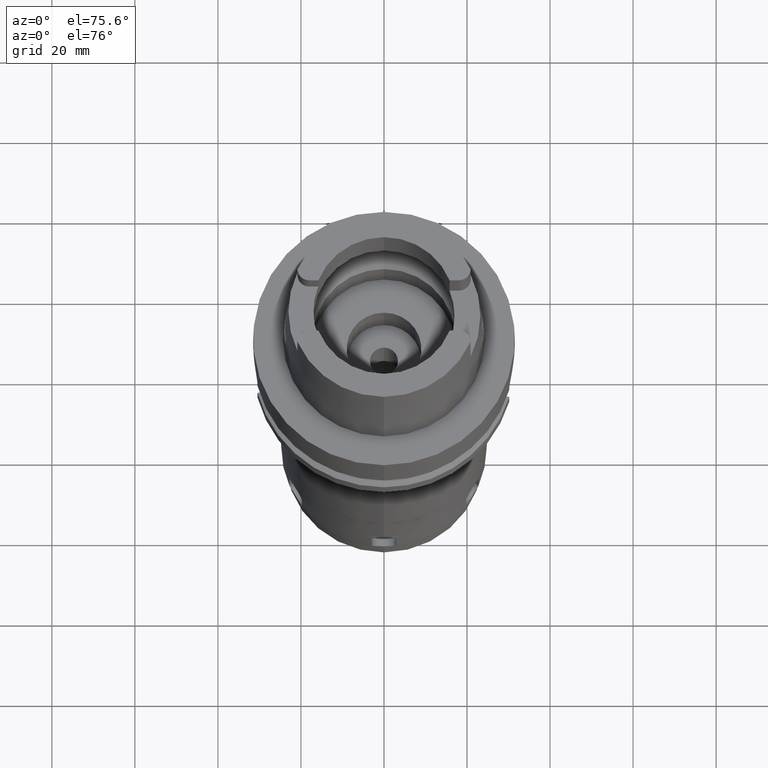
[diagram: clean part render]
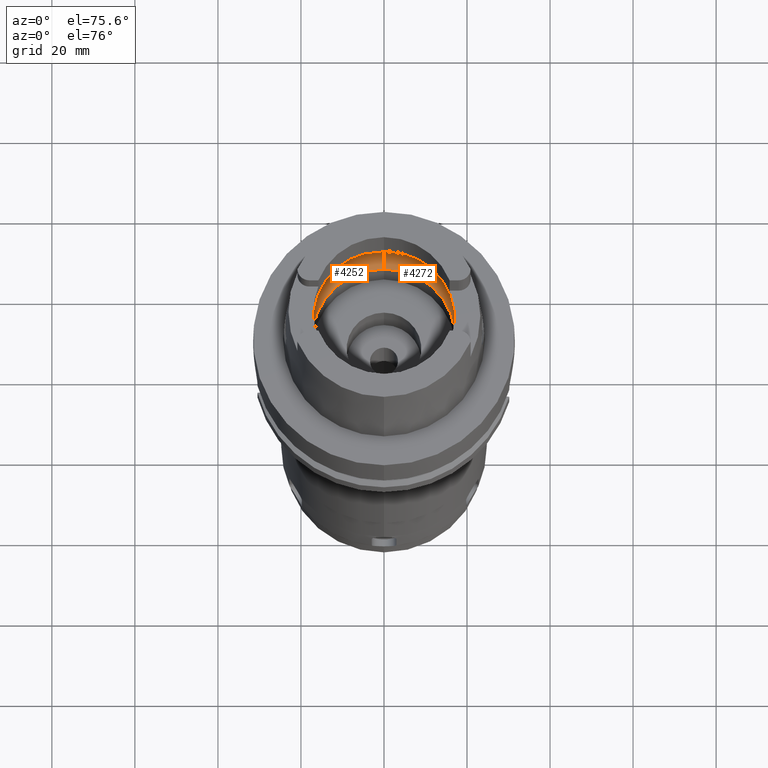
[diagram: same view with one multi-face feature highlighted, each face labeled with its STEP entity id]
A machine part, auxiliary view. The highlighted faces form ONE feature: a constant-radius fillet chain: 2 tangent blend faces with common blend radius 8 mm. The faces share edges in the B-rep.
Their STEP definitions:
[1] entity #4272 (Torus):
#575=CARTESIAN_POINT('',(0.E0,-1.2E1,6.186348233825E0));
#576=DIRECTION('',(-1.E0,0.E0,0.E0));
#577=DIRECTION('',(0.E0,-6.5625E-1,-7.545435292281E-1));
#578=AXIS2_PLACEMENT_3D('',#575,#576,#577);
#591=CARTESIAN_POINT('',(1.994501428476E1,0.E0,5.25E0));
#592=CARTESIAN_POINT('',(1.994501428476E1,-3.022957154465E-1,5.25E0));
#593=CARTESIAN_POINT('',(1.994018609693E1,-9.060474356403E-1,5.323296439589E0));
#594=CARTESIAN_POINT('',(1.991331550025E1,-1.759139202252E0,5.647061182125E0));
#595=CARTESIAN_POINT('',(1.987369610543E1,-2.255438229266E0,5.989294685574E0));
#596=CARTESIAN_POINT('',(1.984575864666E1,-2.479085262491E0,6.186348233825E0));
#601=CARTESIAN_POINT('',(0.E0,0.E0,6.186348233825E0));
#602=DIRECTION('',(0.E0,0.E0,-1.E0));
#603=DIRECTION('',(9.922879323328E-1,-1.239542631245E-1,0.E0));
#604=AXIS2_PLACEMENT_3D('',#601,#602,#603);
#609=CARTESIAN_POINT('',(0.E0,0.E0,1.500000000001E-1));
#610=DIRECTION('',(0.E0,0.E0,1.E0));
#611=DIRECTION('',(0.E0,-1.E0,0.E0));
#612=AXIS2_PLACEMENT_3D('',#609,#610,#611);
#617=CARTESIAN_POINT('',(0.E0,1.2E1,6.186348233825E0));
#618=DIRECTION('',(1.E0,0.E0,0.E0));
#619=DIRECTION('',(0.E0,6.5625E-1,-7.545435292281E-1));
#620=AXIS2_PLACEMENT_3D('',#617,#618,#619);
#625=CARTESIAN_POINT('',(0.E0,0.E0,6.186348233825E0));
#626=DIRECTION('',(0.E0,0.E0,-1.E0));
#627=DIRECTION('',(0.E0,1.E0,0.E0));
#628=AXIS2_PLACEMENT_3D('',#625,#626,#627);
#633=CARTESIAN_POINT('',(1.984575864666E1,2.479085262491E0,6.186348233825E0));
#634=CARTESIAN_POINT('',(1.987369683552E1,2.255432384732E0,5.989289536004E0));
#635=CARTESIAN_POINT('',(1.991331633330E1,1.759123026949E0,5.647052493715E0));
#636=CARTESIAN_POINT('',(1.994018619685E1,9.060366292765E-1,5.323294636829E0));
#637=CARTESIAN_POINT('',(1.994501428476E1,3.022911403854E-1,5.25E0));
#638=CARTESIAN_POINT('',(1.994501428476E1,0.E0,5.25E0));
#650=CARTESIAN_POINT('',(1.984575864666E1,-2.479085262491E0,6.186348233825E0));
#677=CARTESIAN_POINT('',(1.984575864666E1,2.479085262491E0,6.186348233825E0));
#3503=CARTESIAN_POINT('',(0.E0,-2.E1,6.186348233825E0));
#3504=VERTEX_POINT('',#3503);
#3505=CARTESIAN_POINT('',(0.E0,2.E1,6.186348233825E0));
#3506=VERTEX_POINT('',#3505);
#3511=VERTEX_POINT('',#650);
#3513=VERTEX_POINT('',#591);
#3514=VERTEX_POINT('',#677);
#3515=CARTESIAN_POINT('',(0.E0,1.725E1,1.500000000001E-1));
#3516=VERTEX_POINT('',#3515);
#3517=CARTESIAN_POINT('',(0.E0,-1.725E1,1.500000000001E-1));
#3518=VERTEX_POINT('',#3517);
#4253=CARTESIAN_POINT('',(0.E0,0.E0,6.186348233825E0));
#4254=DIRECTION('',(0.E0,0.E0,1.E0));
#4255=DIRECTION('',(0.E0,1.E0,0.E0));
#4256=AXIS2_PLACEMENT_3D('',#4253,#4254,#4255);
#4257=TOROIDAL_SURFACE('',#4256,1.2E1,8.E0);
#4259=ORIENTED_EDGE('',*,*,#4258,.T.);
#4261=ORIENTED_EDGE('',*,*,#4260,.T.);
#4262=ORIENTED_EDGE('',*,*,#4247,.F.);
#4264=ORIENTED_EDGE('',*,*,#4263,.T.);
#4265=ORIENTED_EDGE('',*,*,#4243,.T.);
#4267=ORIENTED_EDGE('',*,*,#4266,.T.);
#4269=ORIENTED_EDGE('',*,*,#4268,.T.);
#4270=EDGE_LOOP('',(#4259,#4261,#4262,#4264,#4265,#4267,#4269));
#4271=FACE_OUTER_BOUND('',#4270,.F.);
#579=CIRCLE('',#578,8.E0);
#597=B_SPLINE_CURVE_WITH_KNOTS('',3,(#591,#592,#593,#594,#595,#596),
.UNSPECIFIED.,.F.,.F.,(4,1,1,4),(0.E0,3.333333333333E-1,6.666666666667E-1,1.E0),
.UNSPECIFIED.);
#605=CIRCLE('',#604,2.E1);
#613=CIRCLE('',#612,1.725E1);
#621=CIRCLE('',#620,8.E0);
#629=CIRCLE('',#628,2.E1);
#639=B_SPLINE_CURVE_WITH_KNOTS('',3,(#633,#634,#635,#636,#637,#638),
.UNSPECIFIED.,.F.,.F.,(4,1,1,4),(0.E0,3.333333333333E-1,6.666666666667E-1,1.E0),
.UNSPECIFIED.);
#4243=EDGE_CURVE('',#3516,#3506,#621,.T.);
#4247=EDGE_CURVE('',#3518,#3504,#579,.T.);
#4258=EDGE_CURVE('',#3513,#3511,#597,.T.);
#4260=EDGE_CURVE('',#3511,#3504,#605,.T.);
#4263=EDGE_CURVE('',#3518,#3516,#613,.T.);
#4266=EDGE_CURVE('',#3506,#3514,#629,.T.);
#4268=EDGE_CURVE('',#3514,#3513,#639,.T.);
#4272=ADVANCED_FACE('',(#4271),#4257,.F.);
[2] entity #4252 (Torus):
#497=CARTESIAN_POINT('',(-1.984575864666E1,-2.479085262491E0,6.186348233825E0));
#539=CARTESIAN_POINT('',(-1.984575864666E1,-2.479085262491E0,6.186348233825E0));
#540=CARTESIAN_POINT('',(-1.987369637762E1,-2.255436050342E0,5.989292765742E0));
#541=CARTESIAN_POINT('',(-1.991331581871E1,-1.759133185383E0,5.647057889337E0));
#542=CARTESIAN_POINT('',(-1.994018615095E1,-9.060425565455E-1,
5.323295534197E0));
#543=CARTESIAN_POINT('',(-1.994501428476E1,-3.022936309386E-1,5.25E0));
#544=CARTESIAN_POINT('',(-1.994501428476E1,0.E0,5.25E0));
#549=CARTESIAN_POINT('',(-1.994501428476E1,0.E0,5.25E0));
#550=CARTESIAN_POINT('',(-1.994501428476E1,3.022931930043E-1,5.25E0));
#551=CARTESIAN_POINT('',(-1.994018614423E1,9.060414364937E-1,5.323295523152E0));
#552=CARTESIAN_POINT('',(-1.991331601589E1,1.759129035713E0,5.647055777419E0));
#553=CARTESIAN_POINT('',(-1.987369656375E1,2.255434560347E0,5.989291452920E0));
#554=CARTESIAN_POINT('',(-1.984575864666E1,2.479085262491E0,6.186348233825E0));
#559=CARTESIAN_POINT('',(0.E0,0.E0,6.186348233825E0));
#560=DIRECTION('',(0.E0,0.E0,-1.E0));
#561=DIRECTION('',(-9.922879323328E-1,1.239542631245E-1,0.E0));
#562=AXIS2_PLACEMENT_3D('',#559,#560,#561);
#567=CARTESIAN_POINT('',(0.E0,0.E0,1.500000000001E-1));
#568=DIRECTION('',(0.E0,0.E0,1.E0));
#569=DIRECTION('',(0.E0,1.E0,0.E0));
#570=AXIS2_PLACEMENT_3D('',#567,#568,#569);
#575=CARTESIAN_POINT('',(0.E0,-1.2E1,6.186348233825E0));
#576=DIRECTION('',(-1.E0,0.E0,0.E0));
#577=DIRECTION('',(0.E0,-6.5625E-1,-7.545435292281E-1));
#578=AXIS2_PLACEMENT_3D('',#575,#576,#577);
#583=CARTESIAN_POINT('',(0.E0,0.E0,6.186348233825E0));
#584=DIRECTION('',(0.E0,0.E0,-1.E0));
#585=DIRECTION('',(0.E0,-1.E0,0.E0));
#586=AXIS2_PLACEMENT_3D('',#583,#584,#585);
#617=CARTESIAN_POINT('',(0.E0,1.2E1,6.186348233825E0));
#618=DIRECTION('',(1.E0,0.E0,0.E0));
#619=DIRECTION('',(0.E0,6.5625E-1,-7.545435292281E-1));
#620=AXIS2_PLACEMENT_3D('',#617,#618,#619);
#3502=VERTEX_POINT('',#497);
#3503=CARTESIAN_POINT('',(0.E0,-2.E1,6.186348233825E0));
#3504=VERTEX_POINT('',#3503);
#3505=CARTESIAN_POINT('',(0.E0,2.E1,6.186348233825E0));
#3506=VERTEX_POINT('',#3505);
#3507=CARTESIAN_POINT('',(-1.984575864666E1,2.479085262490E0,6.186348233825E0));
#3508=VERTEX_POINT('',#3507);
#3509=CARTESIAN_POINT('',(-1.994501428476E1,0.E0,5.25E0));
#3510=VERTEX_POINT('',#3509);
#3515=CARTESIAN_POINT('',(0.E0,1.725E1,1.500000000001E-1));
#3516=VERTEX_POINT('',#3515);
#3517=CARTESIAN_POINT('',(0.E0,-1.725E1,1.500000000001E-1));
#3518=VERTEX_POINT('',#3517);
#4235=CARTESIAN_POINT('',(0.E0,0.E0,6.186348233825E0));
#4236=DIRECTION('',(0.E0,0.E0,1.E0));
#4237=DIRECTION('',(0.E0,1.E0,0.E0));
#4238=AXIS2_PLACEMENT_3D('',#4235,#4236,#4237);
#4239=TOROIDAL_SURFACE('',#4238,1.2E1,8.E0);
#4240=ORIENTED_EDGE('',*,*,#4216,.T.);
#4241=ORIENTED_EDGE('',*,*,#4227,.T.);
#4242=ORIENTED_EDGE('',*,*,#4198,.T.);
#4244=ORIENTED_EDGE('',*,*,#4243,.F.);
#4246=ORIENTED_EDGE('',*,*,#4245,.T.);
#4248=ORIENTED_EDGE('',*,*,#4247,.T.);
#4249=ORIENTED_EDGE('',*,*,#4191,.T.);
#4250=EDGE_LOOP('',(#4240,#4241,#4242,#4244,#4246,#4248,#4249));
#4251=FACE_OUTER_BOUND('',#4250,.F.);
#545=B_SPLINE_CURVE_WITH_KNOTS('',3,(#539,#540,#541,#542,#543,#544),
.UNSPECIFIED.,.F.,.F.,(4,1,1,4),(0.E0,3.333333333333E-1,6.666666666667E-1,1.E0),
.UNSPECIFIED.);
#555=B_SPLINE_CURVE_WITH_KNOTS('',3,(#549,#550,#551,#552,#553,#554),
.UNSPECIFIED.,.F.,.F.,(4,1,1,4),(0.E0,3.333333333333E-1,6.666666666667E-1,1.E0),
.UNSPECIFIED.);
#563=CIRCLE('',#562,2.E1);
#571=CIRCLE('',#570,1.725E1);
#579=CIRCLE('',#578,8.E0);
#587=CIRCLE('',#586,2.E1);
#621=CIRCLE('',#620,8.E0);
#4191=EDGE_CURVE('',#3504,#3502,#587,.T.);
#4198=EDGE_CURVE('',#3508,#3506,#563,.T.);
#4216=EDGE_CURVE('',#3502,#3510,#545,.T.);
#4227=EDGE_CURVE('',#3510,#3508,#555,.T.);
#4243=EDGE_CURVE('',#3516,#3506,#621,.T.);
#4245=EDGE_CURVE('',#3516,#3518,#571,.T.);
#4247=EDGE_CURVE('',#3518,#3504,#579,.T.);
#4252=ADVANCED_FACE('',(#4251),#4239,.F.);